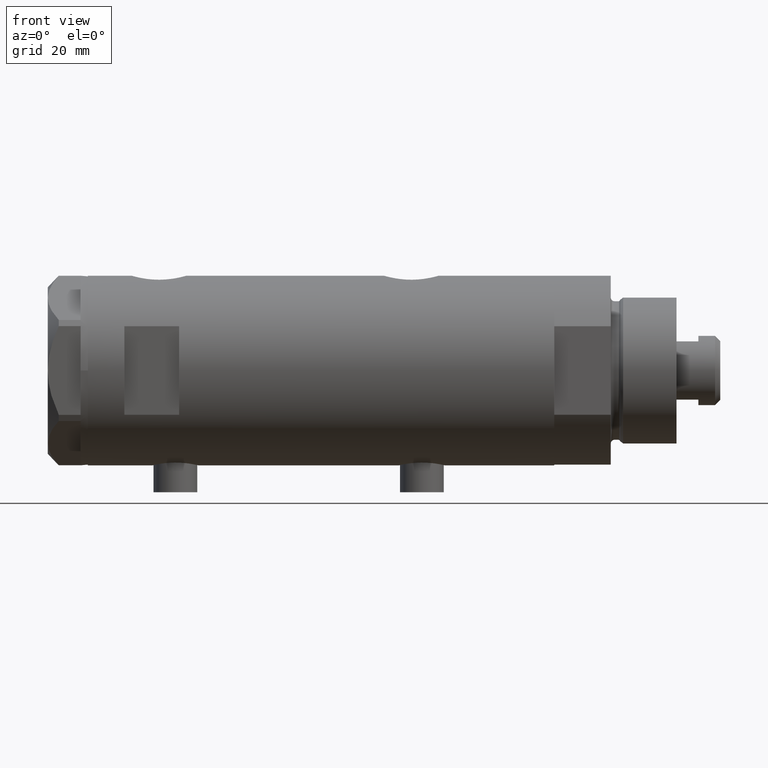
[diagram: clean part render]
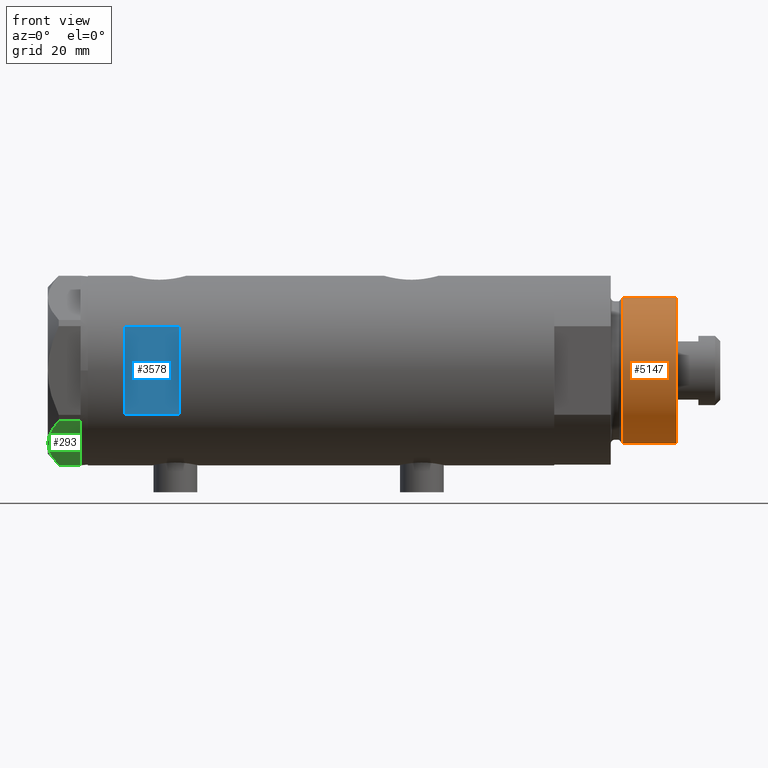
[diagram: same view with three faces highlighted in distinct colors, each labeled with its STEP entity id]
A machine part, front view with three faces highlighted in distinct colors.
Their STEP definitions:

[orange] entity #5147 — the highlighted cylindrical surface (partial cylindrical patch) has radius 20 mm, axis along (-1, -0, 0).
#220 = DIRECTION ( 'NONE',  ( -1.000000000000000000, 0.000000000000000000, 0.000000000000000000 ) ) ;
#383 = LINE ( 'NONE', #2083, #1889 ) ;
#621 = CYLINDRICAL_SURFACE ( 'NONE', #3494, 19.99999999999999645 ) ;
#650 = CARTESIAN_POINT ( 'NONE',  ( 19.99999999999999645, 2.449293598294706119E-15, 33.50000000000000000 ) ) ;
#688 = CARTESIAN_POINT ( 'NONE',  ( 0.000000000000000000, 0.000000000000000000, 18.87384048104053846 ) ) ;
#704 = VECTOR ( 'NONE', #3453, 1000.000000000000000 ) ;
#783 = ORIENTED_EDGE ( 'NONE', *, *, #1439, .F. ) ;
#930 = CARTESIAN_POINT ( 'NONE',  ( 0.000000000000000000, 0.000000000000000000, 33.50000000000000000 ) ) ;
#970 = ORIENTED_EDGE ( 'NONE', *, *, #3990, .T. ) ;
#1006 = CARTESIAN_POINT ( 'NONE',  ( 19.99999999999999645, 2.449293598294706119E-15, 18.87384048104053846 ) ) ;
#1024 = ORIENTED_EDGE ( 'NONE', *, *, #4676, .F. ) ;
#1131 = CARTESIAN_POINT ( 'NONE',  ( -19.99999999999999645, 0.000000000000000000, 33.50000000000000000 ) ) ;
#1439 = EDGE_CURVE ( 'NONE', #1912, #5120, #4239, .T. ) ;
#1739 = DIRECTION ( 'NONE',  ( 1.000000000000000000, 0.000000000000000000, 0.000000000000000000 ) ) ;
#1889 = VECTOR ( 'NONE', #1976, 1000.000000000000000 ) ;
#1912 = VERTEX_POINT ( 'NONE', #4989 ) ;
#1976 = DIRECTION ( 'NONE',  ( -0.000000000000000000, -0.000000000000000000, -1.000000000000000000 ) ) ;
#2083 = CARTESIAN_POINT ( 'NONE',  ( -19.99999999999999645, 0.000000000000000000, 33.50000000000000000 ) ) ;
#2148 = AXIS2_PLACEMENT_3D ( 'NONE', #688, #2282, #4677 ) ;
#2194 = DIRECTION ( 'NONE',  ( 0.000000000000000000, 0.000000000000000000, 1.000000000000000000 ) ) ;
#2212 = FACE_OUTER_BOUND ( 'NONE', #4377, .T. ) ;
#2282 = DIRECTION ( 'NONE',  ( -0.000000000000000000, -0.000000000000000000, 1.000000000000000000 ) ) ;
#2595 = VERTEX_POINT ( 'NONE', #5156 ) ;
#2997 = AXIS2_PLACEMENT_3D ( 'NONE', #930, #2194, #1739 ) ;
#3126 = VERTEX_POINT ( 'NONE', #1131 ) ;
#3231 = ORIENTED_EDGE ( 'NONE', *, *, #4556, .T. ) ;
#3290 = DIRECTION ( 'NONE',  ( -0.000000000000000000, -0.000000000000000000, -1.000000000000000000 ) ) ;
#3453 = DIRECTION ( 'NONE',  ( -0.000000000000000000, -0.000000000000000000, -1.000000000000000000 ) ) ;
#3494 = AXIS2_PLACEMENT_3D ( 'NONE', #3817, #3290, #220 ) ;
#3652 = CIRCLE ( 'NONE', #2148, 19.99999999999999645 ) ;
#3817 = CARTESIAN_POINT ( 'NONE',  ( 0.000000000000000000, 0.000000000000000000, 33.50000000000000000 ) ) ;
#3990 = EDGE_CURVE ( 'NONE', #2595, #5120, #3652, .T. ) ;
#4239 = LINE ( 'NONE', #650, #704 ) ;
#4377 = EDGE_LOOP ( 'NONE', ( #783, #1024, #3231, #970 ) ) ;
#4410 = CIRCLE ( 'NONE', #2997, 19.99999999999999645 ) ;
#4556 = EDGE_CURVE ( 'NONE', #3126, #2595, #383, .T. ) ;
#4676 = EDGE_CURVE ( 'NONE', #3126, #1912, #4410, .T. ) ;
#4677 = DIRECTION ( 'NONE',  ( 1.000000000000000000, 0.000000000000000000, 0.000000000000000000 ) ) ;
#4989 = CARTESIAN_POINT ( 'NONE',  ( 19.99999999999999645, 2.449293598294706119E-15, 33.50000000000000000 ) ) ;
#5120 = VERTEX_POINT ( 'NONE', #1006 ) ;
#5147 = ADVANCED_FACE ( 'NONE', ( #2212 ), #621, .T. ) ;
#5156 = CARTESIAN_POINT ( 'NONE',  ( -19.99999999999999645, 0.000000000000000000, 18.87384048104053846 ) ) ;

[blue] entity #3578 — the highlighted planar face has unit normal (-0, 1, 0).
#184 = EDGE_CURVE ( 'NONE', #2461, #5088, #2482, .T. ) ;
#197 = ORIENTED_EDGE ( 'NONE', *, *, #3065, .T. ) ;
#206 = CARTESIAN_POINT ( 'NONE',  ( 12.12435565298214080, -23.00000000000000355, -63.95000000000000995 ) ) ;
#242 = VERTEX_POINT ( 'NONE', #2825 ) ;
#364 = ORIENTED_EDGE ( 'NONE', *, *, #3395, .T. ) ;
#446 = PLANE ( 'NONE',  #4402 ) ;
#601 = CARTESIAN_POINT ( 'NONE',  ( -12.12435565298214080, -23.00000000000000355, -63.95000000000000995 ) ) ;
#938 = DIRECTION ( 'NONE',  ( 0.000000000000000000, -0.000000000000000000, 1.000000000000000000 ) ) ;
#1548 = LINE ( 'NONE', #2366, #2380 ) ;
#1974 = DIRECTION ( 'NONE',  ( 1.000000000000000000, -0.000000000000000000, -0.000000000000000000 ) ) ;
#2035 = CARTESIAN_POINT ( 'NONE',  ( -26.00000000000000355, -23.00000000000000355, 53.94999999999999574 ) ) ;
#2050 = VECTOR ( 'NONE', #3794, 1000.000000000000000 ) ;
#2055 = DIRECTION ( 'NONE',  ( 1.000000000000000000, -0.000000000000000000, -0.000000000000000000 ) ) ;
#2330 = EDGE_CURVE ( 'NONE', #242, #5088, #3363, .T. ) ;
#2366 = CARTESIAN_POINT ( 'NONE',  ( -26.00000000000000355, -23.00000000000000355, 38.94999999999999574 ) ) ;
#2380 = VECTOR ( 'NONE', #1974, 1000.000000000000000 ) ;
#2461 = VERTEX_POINT ( 'NONE', #5086 ) ;
#2482 = LINE ( 'NONE', #2770, #2777 ) ;
#2530 = ORIENTED_EDGE ( 'NONE', *, *, #2330, .T. ) ;
#2770 = CARTESIAN_POINT ( 'NONE',  ( -26.00000000000000355, -23.00000000000000355, 53.94999999999999574 ) ) ;
#2777 = VECTOR ( 'NONE', #2055, 1000.000000000000000 ) ;
#2786 = EDGE_LOOP ( 'NONE', ( #364, #197, #2530, #4331 ) ) ;
#2825 = CARTESIAN_POINT ( 'NONE',  ( 12.12435565298214080, -23.00000000000000355, 38.94999999999999574 ) ) ;
#2977 = CARTESIAN_POINT ( 'NONE',  ( 12.12435565298214080, -23.00000000000000355, 53.94999999999999574 ) ) ;
#3065 = EDGE_CURVE ( 'NONE', #4014, #242, #1548, .T. ) ;
#3363 = LINE ( 'NONE', #206, #4307 ) ;
#3395 = EDGE_CURVE ( 'NONE', #2461, #4014, #4581, .T. ) ;
#3578 = ADVANCED_FACE ( 'NONE', ( #4820 ), #446, .F. ) ;
#3644 = DIRECTION ( 'NONE',  ( 0.000000000000000000, 1.000000000000000000, 0.000000000000000000 ) ) ;
#3794 = DIRECTION ( 'NONE',  ( -0.000000000000000000, -0.000000000000000000, -1.000000000000000000 ) ) ;
#3883 = CARTESIAN_POINT ( 'NONE',  ( -12.12435565298214080, -23.00000000000000355, 38.94999999999999574 ) ) ;
#4014 = VERTEX_POINT ( 'NONE', #3883 ) ;
#4307 = VECTOR ( 'NONE', #4597, 1000.000000000000000 ) ;
#4331 = ORIENTED_EDGE ( 'NONE', *, *, #184, .F. ) ;
#4402 = AXIS2_PLACEMENT_3D ( 'NONE', #2035, #3644, #938 ) ;
#4581 = LINE ( 'NONE', #601, #2050 ) ;
#4597 = DIRECTION ( 'NONE',  ( 0.000000000000000000, 0.000000000000000000, 1.000000000000000000 ) ) ;
#4820 = FACE_OUTER_BOUND ( 'NONE', #2786, .T. ) ;
#5086 = CARTESIAN_POINT ( 'NONE',  ( -12.12435565298214080, -23.00000000000000355, 53.94999999999999574 ) ) ;
#5088 = VERTEX_POINT ( 'NONE', #2977 ) ;

[green] entity #293 — the highlighted planar face has unit normal (0, 0.5, 0.866).
#76 = CARTESIAN_POINT ( 'NONE',  ( -4.320186229909880105, 24.06385169993494699, 7.629374868826106493 ) ) ;
#123 = LINE ( 'NONE', #3782, #4736 ) ;
#141 = CARTESIAN_POINT ( 'NONE',  ( 0.000000000000000000, 26.55811238272274366, 0.000000000000000000 ) ) ;
#195 = LINE ( 'NONE', #3403, #2123 ) ;
#255 = DIRECTION ( 'NONE',  ( -0.8660254037844380415, -0.5000000000000008882, 0.000000000000000000 ) ) ;
#266 = B_SPLINE_CURVE_WITH_KNOTS ( 'NONE', 3,
 ( #838, #3675, #76, #3178, #2015, #1175, #4772, #4382, #2784, #786 ),
 .UNSPECIFIED., .F., .F.,
 ( 4, 2, 2, 2, 4 ),
 ( 0.001228959670438516723, 0.007497079744270820564, 0.01063113978118697227, 0.01219816979964504812, 0.01376519981810312397 ),
 .UNSPECIFIED. ) ;
#293 = ADVANCED_FACE ( 'NONE', ( #1769 ), #1823, .F. ) ;
#591 = VERTEX_POINT ( 'NONE', #768 ) ;
#768 = CARTESIAN_POINT ( 'NONE',  ( -22.03005154776142760, 13.83905619136131904, 0.000000000000000000 ) ) ;
#786 = CARTESIAN_POINT ( 'NONE',  ( -11.50000000000004441, 19.91858428704211548, 9.000000000000000000 ) ) ;
#838 = CARTESIAN_POINT ( 'NONE',  ( -0.9699484522384356211, 25.99811238272282310, 5.983800287807548912 ) ) ;
#934 = VERTEX_POINT ( 'NONE', #2623 ) ;
#1018 = EDGE_CURVE ( 'NONE', #934, #591, #4248, .T. ) ;
#1091 = CARTESIAN_POINT ( 'NONE',  ( -17.32831362639718975, 16.55360584592005679, 8.040681765829335248 ) ) ;
#1175 = CARTESIAN_POINT ( 'NONE',  ( -9.197898616902920210, 21.24770314027494678, 8.852712638955802404 ) ) ;
#1426 = EDGE_CURVE ( 'NONE', #2036, #934, #195, .T. ) ;
#1509 = VERTEX_POINT ( 'NONE', #4855 ) ;
#1523 = VERTEX_POINT ( 'NONE', #4106 ) ;
#1526 = CARTESIAN_POINT ( 'NONE',  ( -11.50000000000004441, 19.91858428704211548, 9.000000000000000000 ) ) ;
#1666 = EDGE_LOOP ( 'NONE', ( #3095, #3406, #3486, #1781, #1993, #4407, #2559 ) ) ;
#1737 = DIRECTION ( 'NONE',  ( -0.8660254037844380415, -0.5000000000000008882, 0.000000000000000000 ) ) ;
#1769 = FACE_OUTER_BOUND ( 'NONE', #1666, .T. ) ;
#1781 = ORIENTED_EDGE ( 'NONE', *, *, #3714, .F. ) ;
#1823 = PLANE ( 'NONE',  #2163 ) ;
#1993 = ORIENTED_EDGE ( 'NONE', *, *, #3265, .T. ) ;
#2015 = CARTESIAN_POINT ( 'NONE',  ( -7.836767740116576952, 22.03355241838985279, 8.637313967156947214 ) ) ;
#2036 = VERTEX_POINT ( 'NONE', #3142 ) ;
#2062 = EDGE_CURVE ( 'NONE', #2376, #1523, #2640, .T. ) ;
#2123 = VECTOR ( 'NONE', #3034, 1000.000000000000227 ) ;
#2163 = AXIS2_PLACEMENT_3D ( 'NONE', #2172, #4555, #3355 ) ;
#2172 = CARTESIAN_POINT ( 'NONE',  ( 0.000000000000000000, 26.55811238272274366, 9.000000000000000000 ) ) ;
#2260 = CARTESIAN_POINT ( 'NONE',  ( -0.9699484522385772856, 25.99811238272273783, 0.000000000000000000 ) ) ;
#2331 = CARTESIAN_POINT ( 'NONE',  ( -13.32175508098984729, 18.86679350063496585, 9.000000000000088818 ) ) ;
#2376 = VERTEX_POINT ( 'NONE', #3307 ) ;
#2384 = VECTOR ( 'NONE', #4501, 1000.000000000000000 ) ;
#2476 = CARTESIAN_POINT ( 'NONE',  ( -0.9699484522385775076, 25.99811238272273783, 9.000000000000000000 ) ) ;
#2559 = ORIENTED_EDGE ( 'NONE', *, *, #1426, .T. ) ;
#2623 = CARTESIAN_POINT ( 'NONE',  ( -22.00000000000008171, 13.85640646055089498, 0.000000000000000000 ) ) ;
#2640 = B_SPLINE_CURVE_WITH_KNOTS ( 'NONE', 3,
 ( #1526, #2331, #3857, #1091, #3444, #5133, #2697, #4716, #4672, #4299 ),
 .UNSPECIFIED., .F., .F.,
 ( 4, 2, 2, 2, 4 ),
 ( 0.01376519981810312397, 0.01998941321701588544, 0.02154546656674408145, 0.02310151991647227399, 0.02621362661592866600 ),
 .UNSPECIFIED. ) ;
#2697 = CARTESIAN_POINT ( 'NONE',  ( -19.07486218896994856, 15.54523556316589961, 7.397272853991406549 ) ) ;
#2784 = CARTESIAN_POINT ( 'NONE',  ( -11.04134848610939557, 20.18338686205100885, 9.000000000000094147 ) ) ;
#2929 = LINE ( 'NONE', #141, #3321 ) ;
#3034 = DIRECTION ( 'NONE',  ( -0.8660254037844380415, -0.5000000000000008882, 0.000000000000000000 ) ) ;
#3046 = VECTOR ( 'NONE', #255, 1000.000000000000227 ) ;
#3095 = ORIENTED_EDGE ( 'NONE', *, *, #1018, .T. ) ;
#3142 = CARTESIAN_POINT ( 'NONE',  ( -0.9999999999999089617, 25.98076211353316367, 0.000000000000000000 ) ) ;
#3178 = CARTESIAN_POINT ( 'NONE',  ( -6.946777556903624529, 22.54738849024398206, 8.426899937603780089 ) ) ;
#3180 = EDGE_CURVE ( 'NONE', #4098, #2036, #2929, .T. ) ;
#3265 = EDGE_CURVE ( 'NONE', #1509, #4098, #4467, .T. ) ;
#3307 = CARTESIAN_POINT ( 'NONE',  ( -11.50000000000004441, 19.91858428704211548, 9.000000000000000000 ) ) ;
#3321 = VECTOR ( 'NONE', #1737, 1000.000000000000227 ) ;
#3355 = DIRECTION ( 'NONE',  ( 0.8660254037844380415, 0.5000000000000008882, 0.000000000000000000 ) ) ;
#3403 = CARTESIAN_POINT ( 'NONE',  ( 0.000000000000000000, 26.55811238272274366, 0.000000000000000000 ) ) ;
#3406 = ORIENTED_EDGE ( 'NONE', *, *, #3587, .T. ) ;
#3444 = CARTESIAN_POINT ( 'NONE',  ( -17.77001848220191604, 16.29858742851882170, 7.892128867758443356 ) ) ;
#3486 = ORIENTED_EDGE ( 'NONE', *, *, #2062, .F. ) ;
#3587 = EDGE_CURVE ( 'NONE', #591, #1523, #123, .T. ) ;
#3675 = CARTESIAN_POINT ( 'NONE',  ( -2.626494320835632390, 25.04170517956325881, 6.877782426143454586 ) ) ;
#3714 = EDGE_CURVE ( 'NONE', #1509, #2376, #266, .T. ) ;
#3782 = CARTESIAN_POINT ( 'NONE',  ( -22.03005154776143115, 13.83905619136131726, 9.000000000000000000 ) ) ;
#3857 = CARTESIAN_POINT ( 'NONE',  ( -15.11535457301033247, 17.83125835109856183, 8.707651728477001640 ) ) ;
#3895 = CARTESIAN_POINT ( 'NONE',  ( 0.000000000000000000, 26.55811238272274366, 0.000000000000000000 ) ) ;
#4098 = VERTEX_POINT ( 'NONE', #2260 ) ;
#4106 = CARTESIAN_POINT ( 'NONE',  ( -22.03005154776144181, 13.83905619136131371, 5.983800287807625295 ) ) ;
#4248 = LINE ( 'NONE', #3895, #3046 ) ;
#4299 = CARTESIAN_POINT ( 'NONE',  ( -22.03005154776144181, 13.83905619136131371, 5.983800287807625295 ) ) ;
#4382 = CARTESIAN_POINT ( 'NONE',  ( -10.58093321976963175, 20.44920774001128549, 8.981686407609499767 ) ) ;
#4407 = ORIENTED_EDGE ( 'NONE', *, *, #3180, .T. ) ;
#4467 = LINE ( 'NONE', #2476, #2384 ) ;
#4501 = DIRECTION ( 'NONE',  ( 0.000000000000000000, 0.000000000000000000, -1.000000000000000000 ) ) ;
#4513 = DIRECTION ( 'NONE',  ( 0.000000000000000000, 0.000000000000000000, 1.000000000000000000 ) ) ;
#4555 = DIRECTION ( 'NONE',  ( 0.5000000000000009992, -0.8660254037844381525, 0.000000000000000000 ) ) ;
#4672 = CARTESIAN_POINT ( 'NONE',  ( -21.20080365460318461, 14.31782268570115768, 6.431317509509388408 ) ) ;
#4716 = CARTESIAN_POINT ( 'NONE',  ( -20.35958612119326361, 14.80349985506240884, 6.844201024438374859 ) ) ;
#4736 = VECTOR ( 'NONE', #4513, 1000.000000000000000 ) ;
#4772 = CARTESIAN_POINT ( 'NONE',  ( -9.656518383329848021, 20.98291889467267168, 8.907842277728436287 ) ) ;
#4855 = CARTESIAN_POINT ( 'NONE',  ( -0.9699484522384356211, 25.99811238272282310, 5.983800287807548912 ) ) ;
#5133 = CARTESIAN_POINT ( 'NONE',  ( -18.64279229058394804, 15.79469123530778951, 7.570552255229721084 ) ) ;